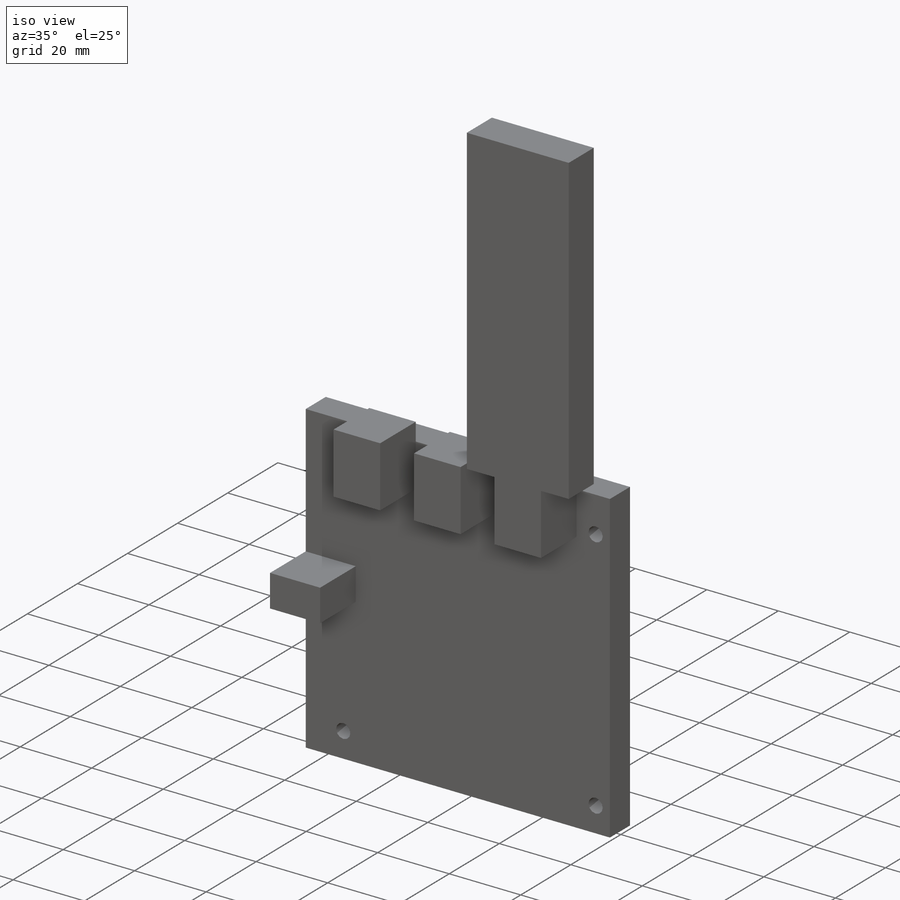
[diagram: iso view]
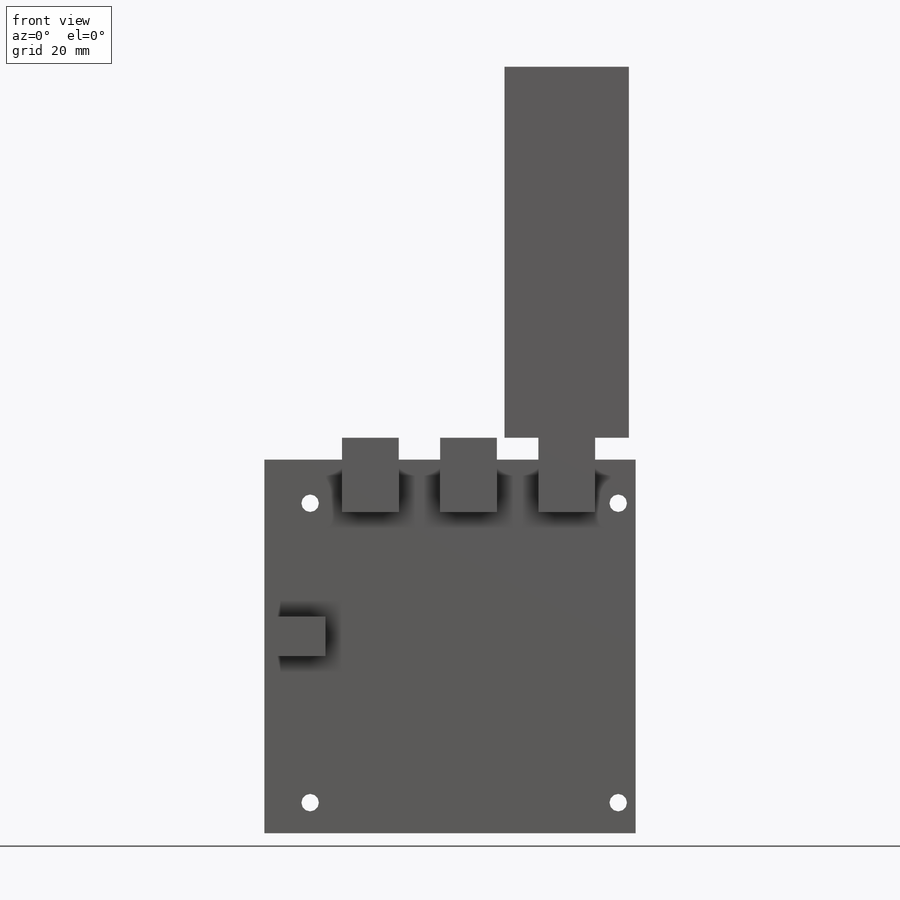
[diagram: front view]
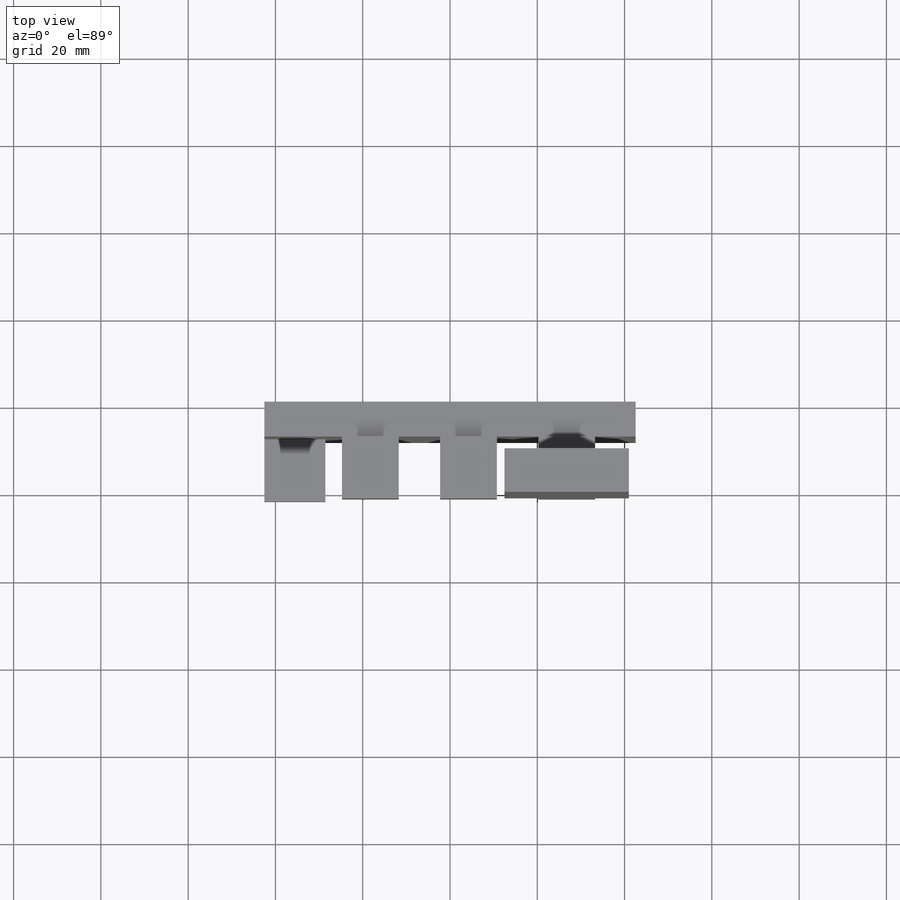
[diagram: top view]
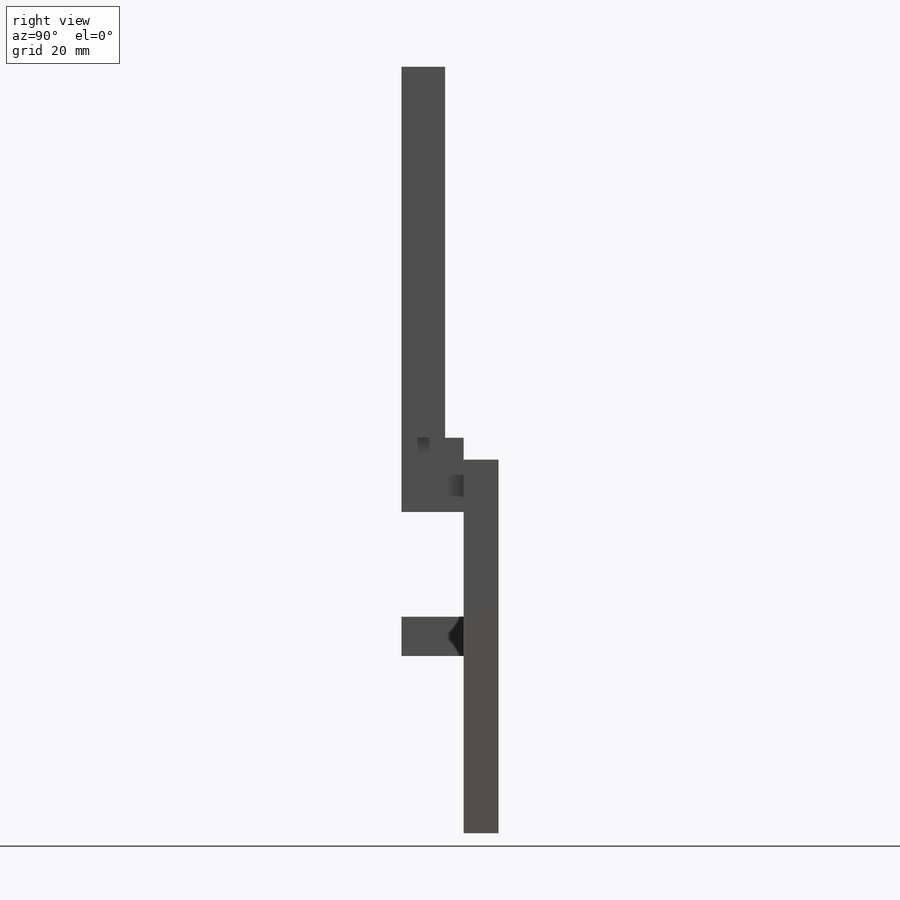
[diagram: right view]
SOLIDWORKS PART (.sldprt)
format: sldprt  version: not decoded by parser v0  size: 239,616 bytes
history: native  units: mm
features: sketch x4, extrude x3, material x1, cut_extrude x1 (+11 scaffold rows collapsed)
feature tree (20):
  scaffold x11  (default folders/planes/origin — collapsed)
  material  "Material <not specified>"
  sketch  "Sketch1"  dims[c1.D3=~6.823257mm c1.D4=~6.823257mm c1.D5=4.0mm c1.D6=4.0mm c1.D7=4.0mm c1.D1=85.09mm c1.D2=85.6mm c2.D3=10.0mm c2.D4=4.0mm c2.D6=10.5mm c2.D7=7.0mm]
  extrude  "Boss-Extrude1"  Depth=8mm
  sketch  "Sketch2"  dims[D1=5.3mm D2=13.0mm D3=17.0mm D4=4.75mm D5=4.75mm D6=36.0mm D7=9.0mm D8=14.0mm]
  extrude  "Boss-Extrude2"  Depth=14.25mm
  sketch  "Sketch3"  dims[c1.D1=5.0mm c1.D2=5.0mm c1.D3=5.0mm c2.D2=6.0mm c2.D3=4.5mm]
  cut_extrude  "Cut-Extrude1"  Depth=3mm
  sketch  "Sketch4"  dims[D1=10.0mm D2=28.5mm]
  extrude  "Boss-Extrude3"  Depth=85mm
decode coverage: 8 of 8 modeling features carry decoded parameters
note: ~ marks probable driven/reference dimensions
note: suppression state not decoded; provenance and decode notes live in map.json
